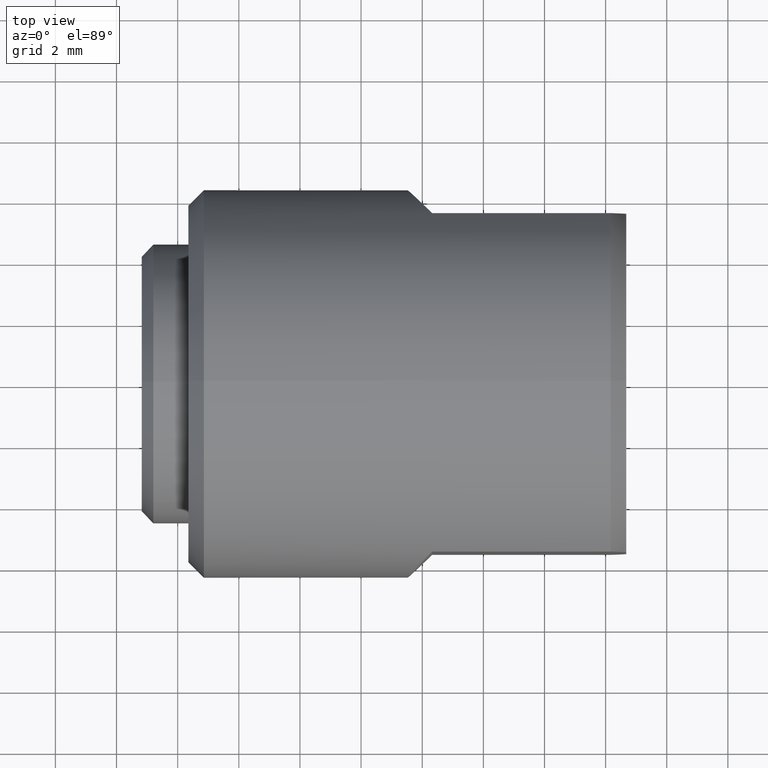
[diagram: clean part render]
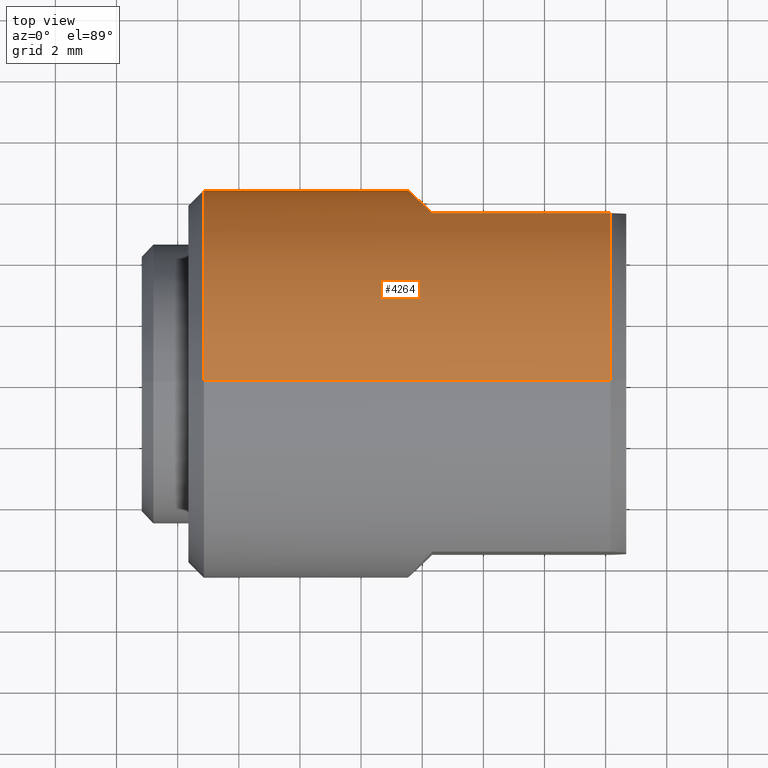
[diagram: same view with one face highlighted and labeled with its STEP entity id]
A machine part, top view. The second image highlights one B-rep face of the part: STEP entity #4264.
In plain terms, the highlighted cylindrical surface (partial cylindrical patch) has radius 6.3373 mm, axis along (-1, -0, -0).
Its self-contained STEP definition (entity closure, byte-faithful):
#220 = CIRCLE ( 'NONE', #11238, 0.2495000000000000551 ) ;
#578 = LINE ( 'NONE', #10124, #4978 ) ;
#858 = EDGE_CURVE ( 'NONE', #2807, #4451, #4628, .T. ) ;
#1095 = VERTEX_POINT ( 'NONE', #8843 ) ;
#1312 = CIRCLE ( 'NONE', #7922, 0.2495000000000000551 ) ;
#1480 = CARTESIAN_POINT ( 'NONE',  ( 0.4790000000000000924, 3.055493763872647498E-17, -0.2495000000000001106 ) ) ;
#1611 = CARTESIAN_POINT ( 'NONE',  ( 0.0000000000000000000, 0.0000000000000000000, 0.2495000000000000273 ) ) ;
#1651 = ORIENTED_EDGE ( 'NONE', *, *, #11498, .F. ) ;
#1838 = DIRECTION ( 'NONE',  ( 0.0000000000000000000, 0.0000000000000000000, 1.000000000000000000 ) ) ;
#2004 = CARTESIAN_POINT ( 'NONE',  ( 0.2490000000000000546, 0.2179999999999999993, -0.1213517614210854190 ) ) ;
#2409 = VECTOR ( 'NONE', #4608, 39.37007874015748143 ) ;
#2434 = EDGE_CURVE ( 'NONE', #11269, #8469, #1312, .T. ) ;
#2554 = DIRECTION ( 'NONE',  ( -1.000000000000000000, -0.0000000000000000000, -0.0000000000000000000 ) ) ;
#2733 = DIRECTION ( 'NONE',  ( 0.0000000000000000000, 0.0000000000000000000, 1.000000000000000000 ) ) ;
#2796 = DIRECTION ( 'NONE',  ( -1.000000000000000000, -0.0000000000000000000, -0.0000000000000000000 ) ) ;
#2807 = VERTEX_POINT ( 'NONE', #11892 ) ;
#2843 = CARTESIAN_POINT ( 'NONE',  ( 0.0000000000000000000, 0.0000000000000000000, 0.0000000000000000000 ) ) ;
#3068 = CARTESIAN_POINT ( 'NONE',  ( 0.4790000000000000924, 0.2180000000000000271, -0.1213517614210853218 ) ) ;
#3101 = EDGE_LOOP ( 'NONE', ( #5104, #4911, #7323, #10488, #9933, #8956, #5731, #1651 ) ) ;
#3114 = CARTESIAN_POINT ( 'NONE',  ( 0.4790000000000000924, 0.0000000000000000000, 0.2495000000000000551 ) ) ;
#3301 = CARTESIAN_POINT ( 'NONE',  ( 0.2060350109409191111, 0.2609649890590809984, 0.04416814657120472082 ) ) ;
#3527 = DIRECTION ( 'NONE',  ( -1.000000000000000000, -0.0000000000000000000, -0.0000000000000000000 ) ) ;
#3616 = EDGE_CURVE ( 'NONE', #7267, #2807, #7212, .T. ) ;
#4023 = CIRCLE ( 'NONE', #8412, 0.2495000000000000273 ) ;
#4099 = CARTESIAN_POINT ( 'NONE',  ( 0.4790000000000000924, 0.2180000000000000271, 0.1213517614210853496 ) ) ;
#4264 = ADVANCED_FACE ( 'NONE', ( #7610 ), #6604, .T. ) ;
#4406 = DIRECTION ( 'NONE',  ( -1.000000000000000000, -0.0000000000000000000, -0.0000000000000000000 ) ) ;
#4451 = VERTEX_POINT ( 'NONE', #4099 ) ;
#4515 = AXIS2_PLACEMENT_3D ( 'NONE', #2843, #3527, #1838 ) ;
#4608 = DIRECTION ( 'NONE',  ( -1.000000000000000000, -0.0000000000000000000, -0.0000000000000000000 ) ) ;
#4628 = LINE ( 'NONE', #5565, #11933 ) ;
#4911 = ORIENTED_EDGE ( 'NONE', *, *, #7842, .T. ) ;
#4978 = VECTOR ( 'NONE', #4406, 39.37007874015748143 ) ;
#5005 = VERTEX_POINT ( 'NONE', #3114 ) ;
#5104 = ORIENTED_EDGE ( 'NONE', *, *, #2434, .T. ) ;
#5345 = CARTESIAN_POINT ( 'NONE',  ( 0.4790000000000000924, 0.0000000000000000000, 0.0000000000000000000 ) ) ;
#5565 = CARTESIAN_POINT ( 'NONE',  ( -2.977714313094046464E-17, 0.2179999999999999716, 0.1213517614210854190 ) ) ;
#5731 = ORIENTED_EDGE ( 'NONE', *, *, #3616, .F. ) ;
#5824 = CARTESIAN_POINT ( 'NONE',  ( 0.2490000000000000546, 0.2179999999999999993, 0.1213517614210854328 ) ) ;
#6430 = CARTESIAN_POINT ( 'NONE',  ( 0.2490000000000000546, 0.2179999999999999993, -0.1213517614210854190 ) ) ;
#6604 = CYLINDRICAL_SURFACE ( 'NONE', #4515, 0.2495000000000000273 ) ;
#7212 =( BOUNDED_CURVE ( )  B_SPLINE_CURVE ( 3, ( #2004, #11911, #3301, #5824 ),
 .UNSPECIFIED., .F., .F. ) 
 B_SPLINE_CURVE_WITH_KNOTS ( ( 4, 4 ),
 ( 5.775243651507128817, 6.791126962852043647 ),
 .UNSPECIFIED. ) 
 CURVE ( )  GEOMETRIC_REPRESENTATION_ITEM ( )  RATIONAL_B_SPLINE_CURVE ( ( 1.000000000000000000, 0.9158316633266530005, 0.9158316633266530005, 1.000000000000000000 ) ) 
 REPRESENTATION_ITEM ( '' )  );
#7267 = VERTEX_POINT ( 'NONE', #6430 ) ;
#7323 = ORIENTED_EDGE ( 'NONE', *, *, #11514, .F. ) ;
#7610 = FACE_OUTER_BOUND ( 'NONE', #3101, .T. ) ;
#7765 = VERTEX_POINT ( 'NONE', #10185 ) ;
#7842 = EDGE_CURVE ( 'NONE', #8469, #1095, #578, .T. ) ;
#7922 = AXIS2_PLACEMENT_3D ( 'NONE', #5345, #8069, #9188 ) ;
#8069 = DIRECTION ( 'NONE',  ( -1.000000000000000000, -0.0000000000000000000, -0.0000000000000000000 ) ) ;
#8371 = DIRECTION ( 'NONE',  ( 0.0000000000000000000, 0.0000000000000000000, 1.000000000000000000 ) ) ;
#8378 = CARTESIAN_POINT ( 'NONE',  ( -0.04499999999999999140, 0.0000000000000000000, 0.0000000000000000000 ) ) ;
#8412 = AXIS2_PLACEMENT_3D ( 'NONE', #8378, #12221, #2733 ) ;
#8469 = VERTEX_POINT ( 'NONE', #1480 ) ;
#8843 = CARTESIAN_POINT ( 'NONE',  ( -0.04499999999999999140, 3.055493763872646882E-17, -0.2495000000000000273 ) ) ;
#8956 = ORIENTED_EDGE ( 'NONE', *, *, #858, .F. ) ;
#9188 = DIRECTION ( 'NONE',  ( 0.0000000000000000000, 0.0000000000000000000, 1.000000000000000000 ) ) ;
#9317 = CARTESIAN_POINT ( 'NONE',  ( 0.4790000000000000924, 0.0000000000000000000, 0.0000000000000000000 ) ) ;
#9323 = CARTESIAN_POINT ( 'NONE',  ( -2.977714313094046464E-17, 0.2179999999999999716, -0.1213517614210854190 ) ) ;
#9406 = LINE ( 'NONE', #1611, #10209 ) ;
#9482 = DIRECTION ( 'NONE',  ( 1.000000000000000000, 0.0000000000000000000, 0.0000000000000000000 ) ) ;
#9525 = EDGE_CURVE ( 'NONE', #5005, #7765, #9406, .T. ) ;
#9933 = ORIENTED_EDGE ( 'NONE', *, *, #11841, .T. ) ;
#10124 = CARTESIAN_POINT ( 'NONE',  ( 0.0000000000000000000, 3.055493763872646882E-17, -0.2495000000000000273 ) ) ;
#10185 = CARTESIAN_POINT ( 'NONE',  ( -0.04499999999999999140, 0.0000000000000000000, 0.2495000000000000273 ) ) ;
#10209 = VECTOR ( 'NONE', #2554, 39.37007874015748143 ) ;
#10267 = LINE ( 'NONE', #9323, #2409 ) ;
#10488 = ORIENTED_EDGE ( 'NONE', *, *, #9525, .F. ) ;
#11238 = AXIS2_PLACEMENT_3D ( 'NONE', #9317, #2796, #8371 ) ;
#11269 = VERTEX_POINT ( 'NONE', #3068 ) ;
#11498 = EDGE_CURVE ( 'NONE', #11269, #7267, #10267, .T. ) ;
#11514 = EDGE_CURVE ( 'NONE', #7765, #1095, #4023, .T. ) ;
#11841 = EDGE_CURVE ( 'NONE', #5005, #4451, #220, .T. ) ;
#11892 = CARTESIAN_POINT ( 'NONE',  ( 0.2490000000000000546, 0.2179999999999999993, 0.1213517614210854328 ) ) ;
#11911 = CARTESIAN_POINT ( 'NONE',  ( 0.2060350109409191111, 0.2609649890590809984, -0.04416814657120479715 ) ) ;
#11933 = VECTOR ( 'NONE', #9482, 39.37007874015748143 ) ;
#12221 = DIRECTION ( 'NONE',  ( -1.000000000000000000, -0.0000000000000000000, -0.0000000000000000000 ) ) ;